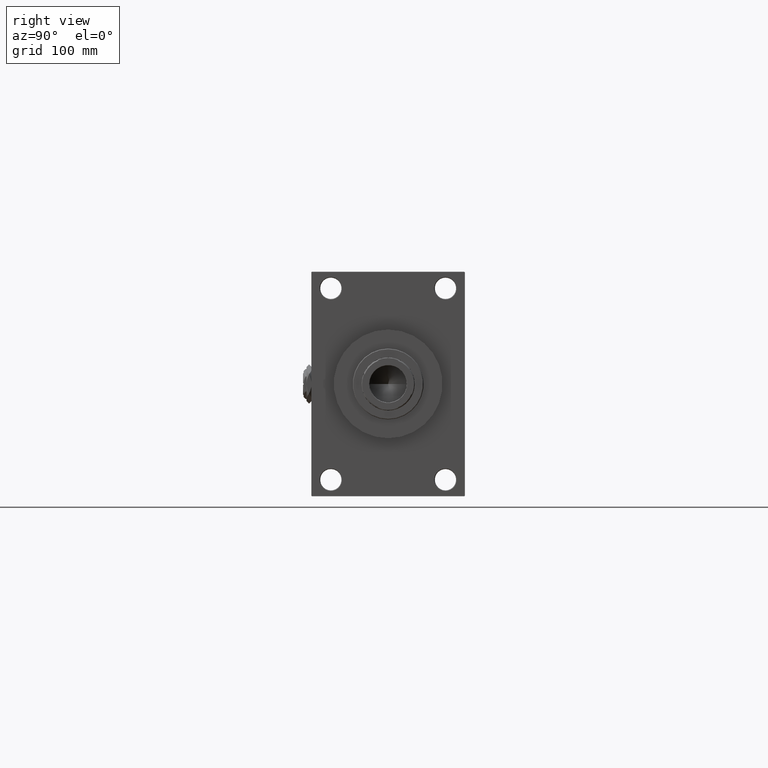
[diagram: clean part render]
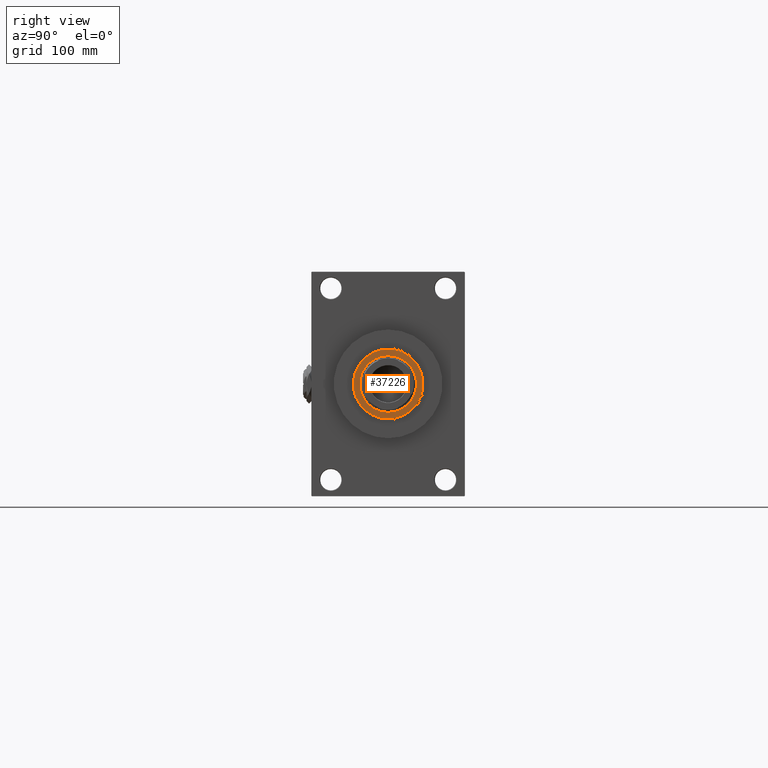
[diagram: same view with one face highlighted and labeled with its STEP entity id]
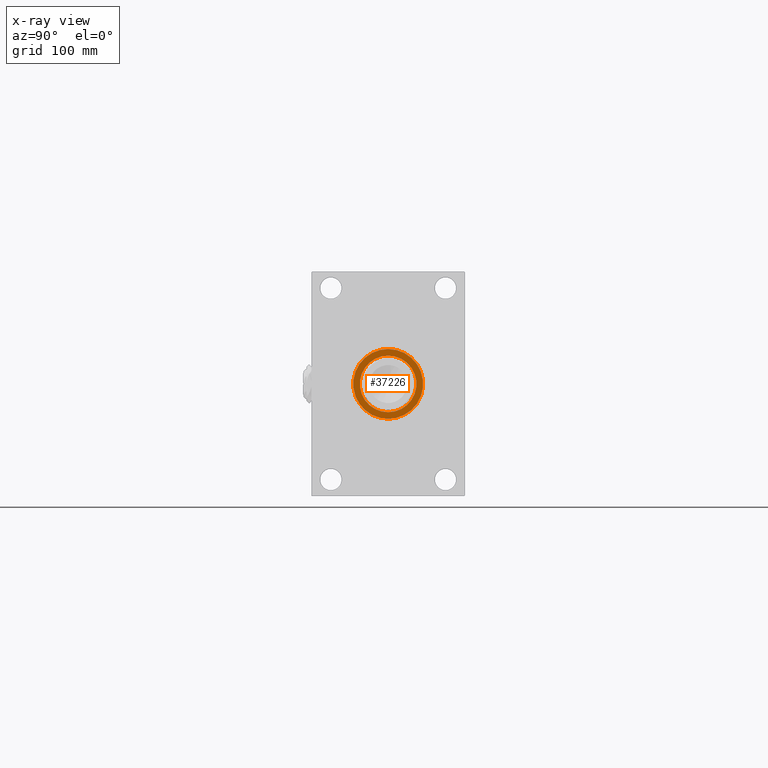
[diagram: x-ray of the same camera — body ghosted, the highlighted face saturated]
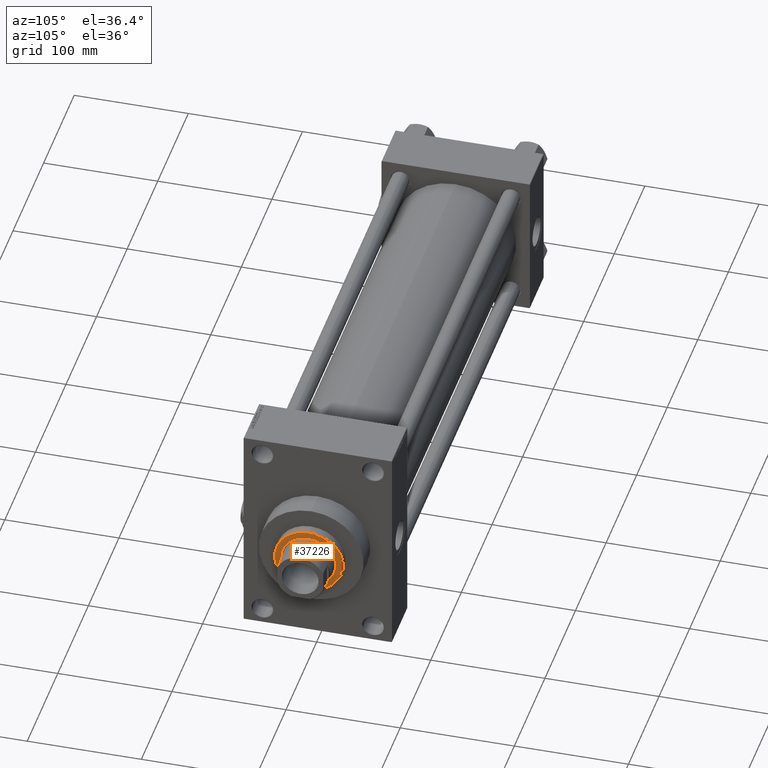
[diagram: same view with one face highlighted and labeled with its STEP entity id]
A machine part, right view. The second image highlights one B-rep face of the part: STEP entity #37226.
The next image is the same camera in x-ray: the body ghosted, the highlighted face saturated — about 0% of this face is hidden behind the body in this view.
A second angle (auxiliary view) of the same face is appended — the face is thin or edge-on in the first view.
In plain terms, the highlighted planar face has unit normal (1, -0, -0).
Its self-contained STEP definition (entity closure, byte-faithful):
#805 = EDGE_CURVE ( 'NONE', #49596, #39823, #8334, .T. ) ;
#1697 = ORIENTED_EDGE ( 'NONE', *, *, #805, .F. ) ;
#2113 = EDGE_LOOP ( 'NONE', ( #12055, #9810 ) ) ;
#3948 = AXIS2_PLACEMENT_3D ( 'NONE', #14542, #18066, #41498 ) ;
#5000 = DIRECTION ( 'NONE',  ( 1.000000000000000000, 0.000000000000000000, 0.000000000000000000 ) ) ;
#7799 = CARTESIAN_POINT ( 'NONE',  ( 0.000000000000000000, 0.000000000000000000, 52.25999999999999801 ) ) ;
#8162 = CARTESIAN_POINT ( 'NONE',  ( 29.50000000000000000, 3.643324227463375391E-15, 52.25999999999999801 ) ) ;
#8334 = CIRCLE ( 'NONE', #37275, 24.00000000000000355 ) ;
#9330 = EDGE_CURVE ( 'NONE', #39823, #49596, #42244, .T. ) ;
#9810 = ORIENTED_EDGE ( 'NONE', *, *, #16035, .T. ) ;
#10383 = AXIS2_PLACEMENT_3D ( 'NONE', #21654, #49345, #29457 ) ;
#11037 = DIRECTION ( 'NONE',  ( 0.000000000000000000, 0.000000000000000000, 1.000000000000000000 ) ) ;
#12055 = ORIENTED_EDGE ( 'NONE', *, *, #16401, .T. ) ;
#12329 = CARTESIAN_POINT ( 'NONE',  ( 24.00000000000000355, 0.000000000000000000, 52.25999999999999801 ) ) ;
#13586 = CIRCLE ( 'NONE', #10383, 29.50000000000000000 ) ;
#14542 = CARTESIAN_POINT ( 'NONE',  ( 0.000000000000000000, 0.000000000000000000, 52.25999999999999801 ) ) ;
#16035 = EDGE_CURVE ( 'NONE', #23423, #49577, #13586, .T. ) ;
#16401 = EDGE_CURVE ( 'NONE', #49577, #23423, #44141, .T. ) ;
#18066 = DIRECTION ( 'NONE',  ( 0.000000000000000000, 0.000000000000000000, 1.000000000000000000 ) ) ;
#18364 = AXIS2_PLACEMENT_3D ( 'NONE', #33944, #11037, #37471 ) ;
#19002 = DIRECTION ( 'NONE',  ( 1.000000000000000000, 0.000000000000000000, 0.000000000000000000 ) ) ;
#21654 = CARTESIAN_POINT ( 'NONE',  ( 0.000000000000000000, 0.000000000000000000, 52.25999999999999801 ) ) ;
#22602 = FACE_OUTER_BOUND ( 'NONE', #2113, .T. ) ;
#22769 = CARTESIAN_POINT ( 'NONE',  ( 0.000000000000000000, 0.000000000000000000, 52.25999999999999801 ) ) ;
#23423 = VERTEX_POINT ( 'NONE', #8162 ) ;
#26211 = CARTESIAN_POINT ( 'NONE',  ( -29.50000000000000000, 0.000000000000000000, 52.25999999999999801 ) ) ;
#27571 = EDGE_LOOP ( 'NONE', ( #1697, #33136 ) ) ;
#29457 = DIRECTION ( 'NONE',  ( 1.000000000000000000, 0.000000000000000000, 0.000000000000000000 ) ) ;
#30890 = FACE_BOUND ( 'NONE', #27571, .T. ) ;
#33136 = ORIENTED_EDGE ( 'NONE', *, *, #9330, .F. ) ;
#33390 = AXIS2_PLACEMENT_3D ( 'NONE', #7799, #38524, #5000 ) ;
#33944 = CARTESIAN_POINT ( 'NONE',  ( 0.000000000000000000, 0.000000000000000000, 52.25999999999999801 ) ) ;
#34192 = PLANE ( 'NONE',  #18364 ) ;
#37226 = ADVANCED_FACE ( 'NONE', ( #30890, #22602 ), #34192, .T. ) ;
#37275 = AXIS2_PLACEMENT_3D ( 'NONE', #22769, #45465, #19002 ) ;
#37471 = DIRECTION ( 'NONE',  ( 1.000000000000000000, 0.000000000000000000, -0.000000000000000000 ) ) ;
#38524 = DIRECTION ( 'NONE',  ( 0.000000000000000000, 0.000000000000000000, 1.000000000000000000 ) ) ;
#38894 = CARTESIAN_POINT ( 'NONE',  ( -24.00000000000000355, 2.939152317953648289E-15, 52.25999999999999801 ) ) ;
#39823 = VERTEX_POINT ( 'NONE', #38894 ) ;
#41498 = DIRECTION ( 'NONE',  ( 1.000000000000000000, 0.000000000000000000, 0.000000000000000000 ) ) ;
#42244 = CIRCLE ( 'NONE', #33390, 24.00000000000000355 ) ;
#44141 = CIRCLE ( 'NONE', #3948, 29.50000000000000000 ) ;
#45465 = DIRECTION ( 'NONE',  ( 0.000000000000000000, 0.000000000000000000, 1.000000000000000000 ) ) ;
#49345 = DIRECTION ( 'NONE',  ( 0.000000000000000000, 0.000000000000000000, 1.000000000000000000 ) ) ;
#49577 = VERTEX_POINT ( 'NONE', #26211 ) ;
#49596 = VERTEX_POINT ( 'NONE', #12329 ) ;